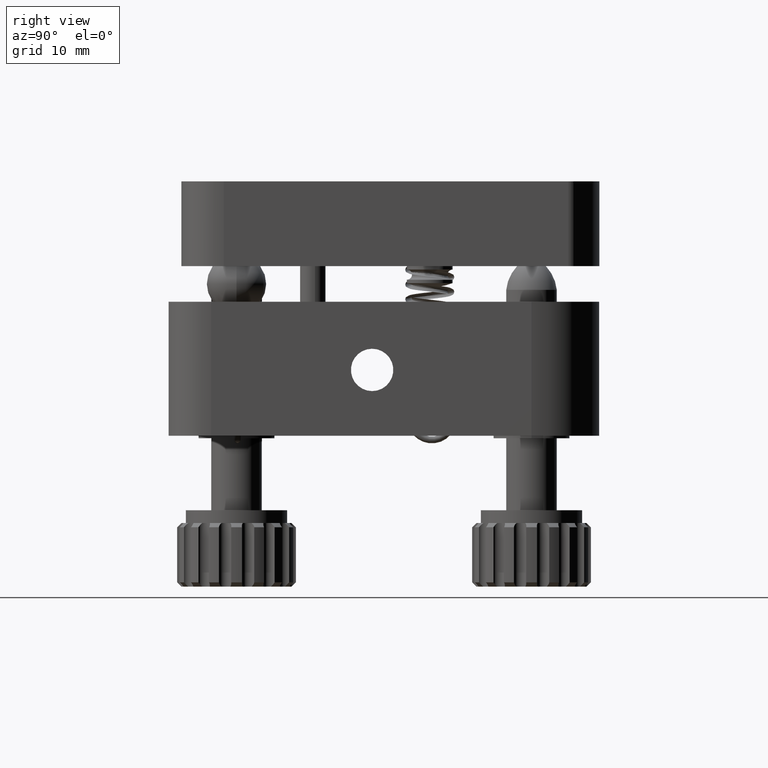
[diagram: clean part render]
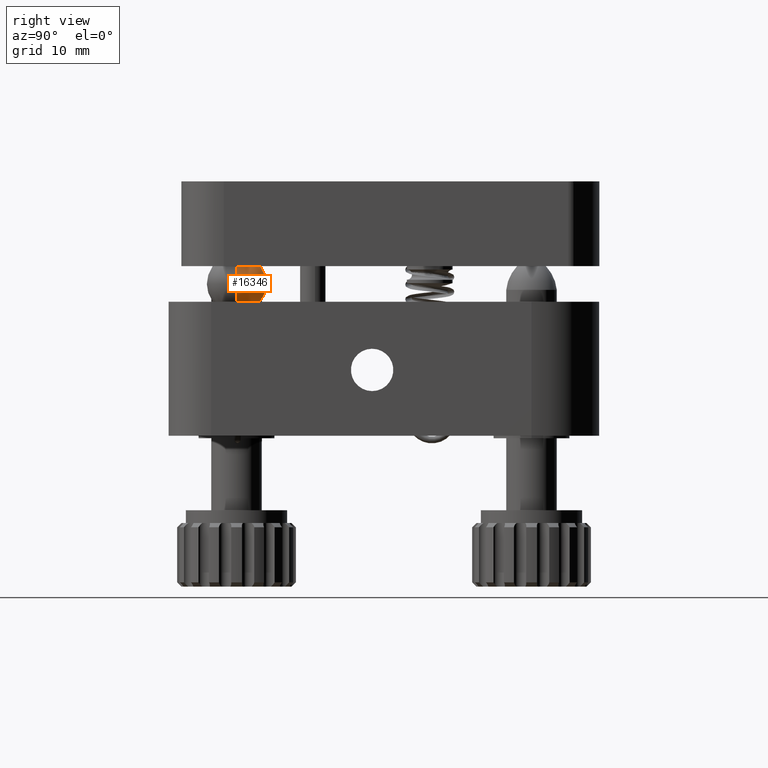
[diagram: same view with one face highlighted and labeled with its STEP entity id]
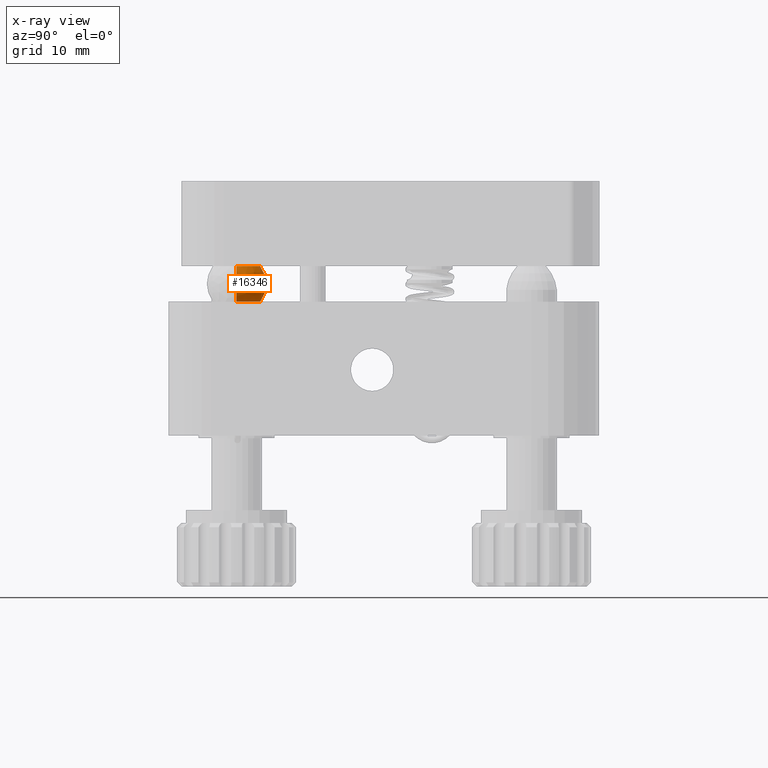
[diagram: x-ray of the same camera — body ghosted, the highlighted face saturated]
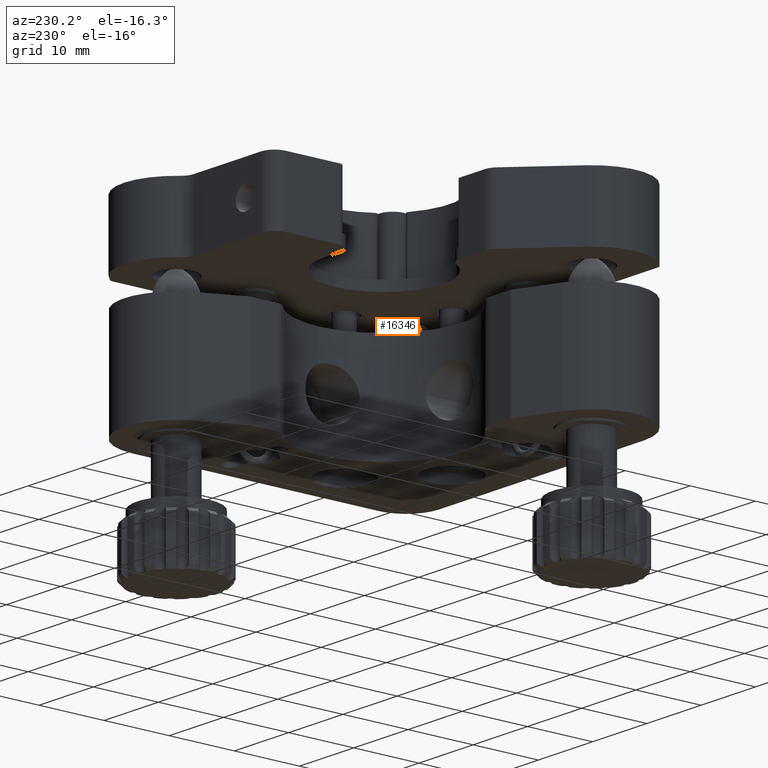
[diagram: same view with one face highlighted and labeled with its STEP entity id]
A machine part, right view. The second image highlights one B-rep face of the part: STEP entity #16346.
The next image is the same camera in x-ray: the body ghosted, the highlighted face saturated — about 0% of this face is hidden behind the body in this view.
A second angle (auxiliary view) of the same face is appended — the face is thin or edge-on in the first view.
In plain terms, the highlighted spherical surface has radius 3.5 mm.
Its self-contained STEP definition (entity closure, byte-faithful):
#887 = EDGE_CURVE ( 'NONE', #13770, #35368, #24573, .T. ) ;
#1074 = EDGE_LOOP ( 'NONE', ( #10640, #19965, #29995, #23900 ) ) ;
#1861 = DIRECTION ( 'NONE',  ( 1.000000000000000000, 0.0000000000000000000, 0.0000000000000000000 ) ) ;
#2509 = DIRECTION ( 'NONE',  ( 0.0000000000000000000, 0.0000000000000000000, 1.000000000000000000 ) ) ;
#2765 = AXIS2_PLACEMENT_3D ( 'NONE', #8143, #11088, #10368 ) ;
#6440 = CARTESIAN_POINT ( 'NONE',  ( 13.81214223222097800, -17.39416114652300700, 44.30000000000000400 ) ) ;
#6616 = CARTESIAN_POINT ( 'NONE',  ( 11.01214223222097900, -17.39416114652300700, 46.40000000000001300 ) ) ;
#8143 = CARTESIAN_POINT ( 'NONE',  ( 13.81214223222097800, -17.39416114652300700, 46.40000000000001300 ) ) ;
#9483 = DIRECTION ( 'NONE',  ( -1.000000000000000000, 0.0000000000000000000, 0.0000000000000000000 ) ) ;
#10368 = DIRECTION ( 'NONE',  ( 1.000000000000000000, 0.0000000000000000000, 0.0000000000000000000 ) ) ;
#10640 = ORIENTED_EDGE ( 'NONE', *, *, #16512, .F. ) ;
#11071 = AXIS2_PLACEMENT_3D ( 'NONE', #13056, #32574, #15863 ) ;
#11088 = DIRECTION ( 'NONE',  ( -0.0000000000000000000, -0.0000000000000000000, 1.000000000000000000 ) ) ;
#11886 = FACE_OUTER_BOUND ( 'NONE', #1074, .T. ) ;
#13056 = CARTESIAN_POINT ( 'NONE',  ( 13.81214223222097800, -17.39416114652300700, 42.20000000000000300 ) ) ;
#13770 = VERTEX_POINT ( 'NONE', #23257 ) ;
#15863 = DIRECTION ( 'NONE',  ( 1.000000000000000000, 0.0000000000000000000, 0.0000000000000000000 ) ) ;
#16346 = ADVANCED_FACE ( 'NONE', ( #11886 ), #30661, .T. ) ;
#16512 = EDGE_CURVE ( 'NONE', #36141, #13770, #31971, .T. ) ;
#18638 = DIRECTION ( 'NONE',  ( -1.224646799147353200E-016, -1.000000000000000000, -0.0000000000000000000 ) ) ;
#19282 = DIRECTION ( 'NONE',  ( 0.0000000000000000000, 1.000000000000000000, 0.0000000000000000000 ) ) ;
#19965 = ORIENTED_EDGE ( 'NONE', *, *, #31415, .T. ) ;
#21174 = AXIS2_PLACEMENT_3D ( 'NONE', #35349, #18638, #1861 ) ;
#22570 = AXIS2_PLACEMENT_3D ( 'NONE', #35990, #19282, #2509 ) ;
#23257 = CARTESIAN_POINT ( 'NONE',  ( 16.61214223222097500, -17.39416114652300700, 46.40000000000001300 ) ) ;
#23900 = ORIENTED_EDGE ( 'NONE', *, *, #887, .F. ) ;
#24573 = CIRCLE ( 'NONE', #2765, 2.799999999999997200 ) ;
#24682 = VERTEX_POINT ( 'NONE', #29362 ) ;
#26244 = DIRECTION ( 'NONE',  ( 0.0000000000000000000, -1.000000000000000000, 0.0000000000000000000 ) ) ;
#29362 = CARTESIAN_POINT ( 'NONE',  ( 11.01214223222097900, -17.39416114652300700, 42.20000000000000300 ) ) ;
#29995 = ORIENTED_EDGE ( 'NONE', *, *, #33859, .T. ) ;
#30661 = SPHERICAL_SURFACE ( 'NONE', #31181, 3.499999999999999600 ) ;
#31181 = AXIS2_PLACEMENT_3D ( 'NONE', #6440, #26244, #9483 ) ;
#31415 = EDGE_CURVE ( 'NONE', #36141, #24682, #32120, .T. ) ;
#31971 = CIRCLE ( 'NONE', #21174, 3.499999999999999600 ) ;
#32120 = CIRCLE ( 'NONE', #11071, 2.799999999999997200 ) ;
#32574 = DIRECTION ( 'NONE',  ( -0.0000000000000000000, -0.0000000000000000000, 1.000000000000000000 ) ) ;
#33085 = CARTESIAN_POINT ( 'NONE',  ( 16.61214223222097500, -17.39416114652300700, 42.20000000000000300 ) ) ;
#33859 = EDGE_CURVE ( 'NONE', #24682, #35368, #35329, .T. ) ;
#35329 = CIRCLE ( 'NONE', #22570, 3.500000000000003100 ) ;
#35349 = CARTESIAN_POINT ( 'NONE',  ( 13.81214223222097800, -17.39416114652300700, 44.30000000000000400 ) ) ;
#35368 = VERTEX_POINT ( 'NONE', #6616 ) ;
#35990 = CARTESIAN_POINT ( 'NONE',  ( 13.81214223222097800, -17.39416114652300700, 44.30000000000000400 ) ) ;
#36141 = VERTEX_POINT ( 'NONE', #33085 ) ;